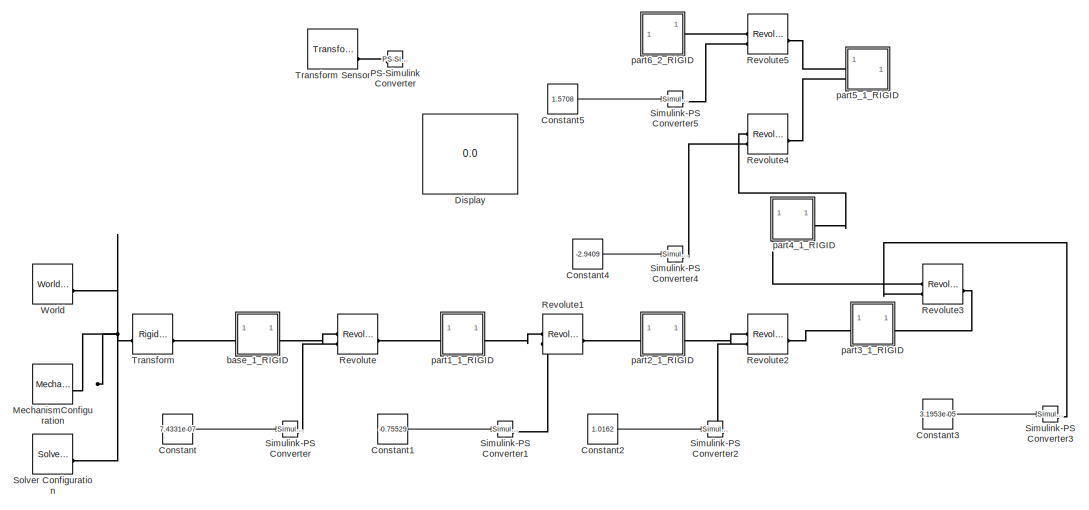
[diagram: root canvas - part 1/2, left side, full height]
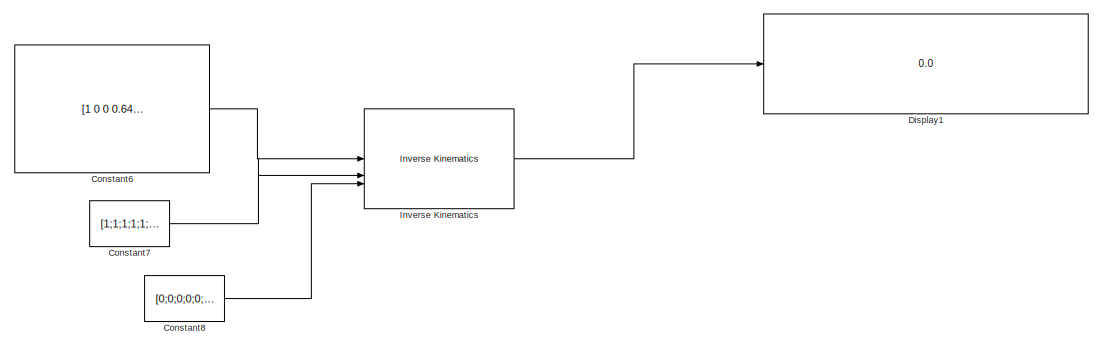
[diagram: root canvas - part 2/2, bottom right region]
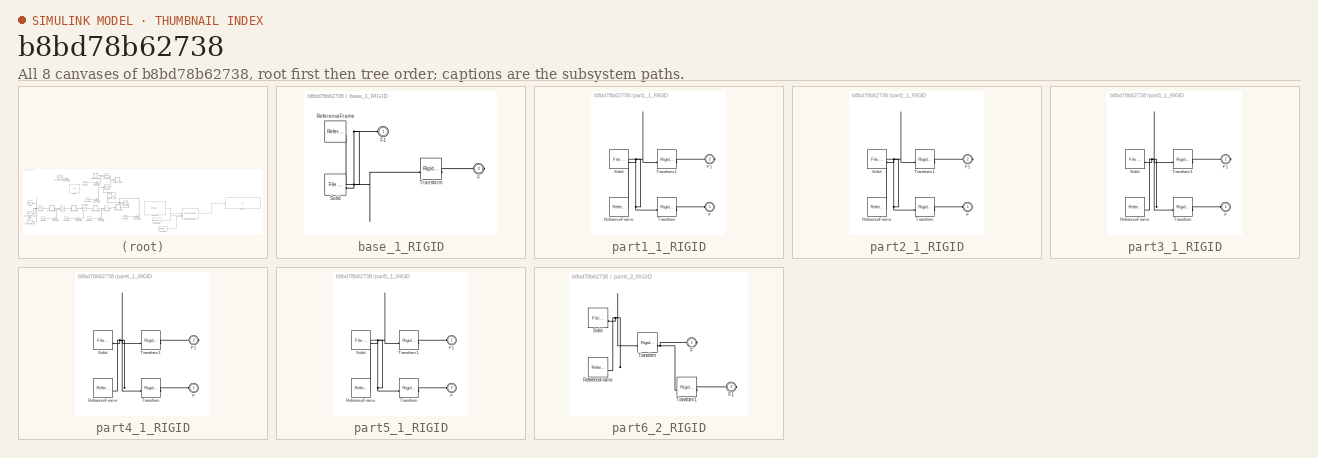
[diagram: thumbnail index - all 8 canvases of the model, root first then tree order]
MODEL slx_b8bd78b62738
KIND model
CONFIG AbsTol = auto
CONFIG EnableMultiTasking = off
CONFIG FixedStep = auto
CONFIG MaxStep = auto
CONFIG MinStep = auto
CONFIG RelTol = 1e-3
CONFIG SampleTimeConstraint = Unconstrained
CONFIG SolverName = VariableStepAuto
CONFIG StartFcn = 1
CONFIG StartTime = 0.0
CONFIG StopTime = inf
WORKSPACE source: external: MATLAB File  (data not in archive)
BLOCK [Constant] Constant
  Value = 7.4331e-07
BLOCK [Constant] Constant1
  Value = -0.75529
BLOCK [Constant] Constant2
  Value = 1.0162
BLOCK [Constant] Constant3
  Value = 3.1953e-05
BLOCK [Constant] Constant4
  NameLocation = top
  Value = -2.9409
BLOCK [Constant] Constant5
  NameLocation = top
  Value = 1.5708
BLOCK [Constant] Constant6
  Value = [1 0 0 0.6425; 0 1 0 0; 0 0 1 0.603; 0 0 0 1]
BLOCK [Constant] Constant7
  Value = [1;1;1;1;1;1]
BLOCK [Constant] Constant8
  Value = [0;0;0;0;0;0]
BLOCK [Display] Display
  Commented = on
  Decimation = 1
BLOCK [Display] Display1
  Decimation = 1
BLOCK [Reference] Inverse Kinematics  REF=robotmaniplib/Inverse Kinematics
  SourceBlock = robotmaniplib/Inverse Kinematics
  SourceType = Inverse Kinematics
BLOCK [Reference] MechanismConfiguration  REF=sm_lib/Utilities/Mechanism
Configuration
  SourceBlock = sm_lib/Utilities/Mechanism\nConfiguration
  SourceType = Mechanism\nConfiguration
BLOCK [Reference] PS-Simulink Converter  REF=nesl_utility/PS-Simulink
Converter
  Commented = on
  SourceBlock = nesl_utility/PS-Simulink\nConverter
  SourceType = PS-Simulink\nConverter
BLOCK [Reference] Revolute  REF=sm_lib/Joints/Revolute Joint
  SourceBlock = sm_lib/Joints/Revolute Joint
  SourceType = Revolute Joint
BLOCK [Reference] Revolute1  REF=sm_lib/Joints/Revolute Joint
  SourceBlock = sm_lib/Joints/Revolute Joint
  SourceType = Revolute Joint
BLOCK [Reference] Revolute2  REF=sm_lib/Joints/Revolute Joint
  SourceBlock = sm_lib/Joints/Revolute Joint
  SourceType = Revolute Joint
BLOCK [Reference] Revolute3  REF=sm_lib/Joints/Revolute Joint
  SourceBlock = sm_lib/Joints/Revolute Joint
  SourceType = Revolute Joint
BLOCK [Reference] Revolute4  REF=sm_lib/Joints/Revolute Joint
  SourceBlock = sm_lib/Joints/Revolute Joint
  SourceType = Revolute Joint
BLOCK [Reference] Revolute5  REF=sm_lib/Joints/Revolute Joint
  SourceBlock = sm_lib/Joints/Revolute Joint
  SourceType = Revolute Joint
BLOCK [Reference] Simulink-PS Converter  REF=nesl_utility/Simulink-PS
Converter
  SourceBlock = nesl_utility/Simulink-PS\nConverter
  SourceType = Simulink-PS\nConverter
BLOCK [Reference] Simulink-PS Converter1  REF=nesl_utility/Simulink-PS
Converter
  SourceBlock = nesl_utility/Simulink-PS\nConverter
  SourceType = Simulink-PS\nConverter
BLOCK [Reference] Simulink-PS Converter2  REF=nesl_utility/Simulink-PS
Converter
  SourceBlock = nesl_utility/Simulink-PS\nConverter
  SourceType = Simulink-PS\nConverter
BLOCK [Reference] Simulink-PS Converter3  REF=nesl_utility/Simulink-PS
Converter
  SourceBlock = nesl_utility/Simulink-PS\nConverter
  SourceType = Simulink-PS\nConverter
BLOCK [Reference] Simulink-PS Converter4  REF=nesl_utility/Simulink-PS
Converter
  SourceBlock = nesl_utility/Simulink-PS\nConverter
  SourceType = Simulink-PS\nConverter
BLOCK [Reference] Simulink-PS Converter5  REF=nesl_utility/Simulink-PS
Converter
  SourceBlock = nesl_utility/Simulink-PS\nConverter
  SourceType = Simulink-PS\nConverter
BLOCK [Reference] Solver Configuration  REF=nesl_utility/Solver
Configuration
  SourceBlock = nesl_utility/Solver\nConfiguration
  SourceType = Solver\nConfiguration
BLOCK [Reference] Transform  REF=sm_lib/Frames and
Transforms/Rigid
Transform
  SourceBlock = sm_lib/Frames and\nTransforms/Rigid\nTransform
  SourceType = Rigid\nTransform
BLOCK [Reference] Transform Sensor  REF=sm_lib/Frames and
Transforms/Transform
Sensor
  Commented = on
  SourceBlock = sm_lib/Frames and\nTransforms/Transform\nSensor
  SourceType = Transform\nSensor
BLOCK [Reference] World  REF=sm_lib/Frames and
Transforms/World Frame
  SourceBlock = sm_lib/Frames and\nTransforms/World Frame
  SourceType = World Frame
BLOCK [SubSystem] base_1_RIGID
BLOCK [PMIOPort] base_1_RIGID/F
  Port = 2
  Side = Right
BLOCK [PMIOPort] base_1_RIGID/F1
  Side = Left
BLOCK [Reference] base_1_RIGID/ReferenceFrame  REF=sm_lib/Frames and
Transforms/Reference
Frame
  SourceBlock = sm_lib/Frames and\nTransforms/Reference\nFrame
  SourceType = Reference\nFrame
BLOCK [Reference] base_1_RIGID/Solid  REF=sm_lib/Body Elements/File Solid
  SourceBlock = sm_lib/Body Elements/File Solid
  SourceType = File Solid
BLOCK [Reference] base_1_RIGID/Transform  REF=sm_lib/Frames and
Transforms/Rigid
Transform
  SourceBlock = sm_lib/Frames and\nTransforms/Rigid\nTransform
  SourceType = Rigid\nTransform
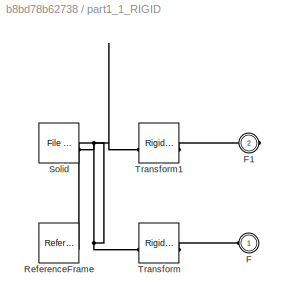
BLOCK [SubSystem] part1_1_RIGID
BLOCK [PMIOPort] part1_1_RIGID/F
  Side = Left
BLOCK [PMIOPort] part1_1_RIGID/F1
  Port = 2
  Side = Right
BLOCK [Reference] part1_1_RIGID/ReferenceFrame  REF=sm_lib/Frames and
Transforms/Reference
Frame
  SourceBlock = sm_lib/Frames and\nTransforms/Reference\nFrame
  SourceType = Reference\nFrame
BLOCK [Reference] part1_1_RIGID/Solid  REF=sm_lib/Body Elements/File Solid
  SourceBlock = sm_lib/Body Elements/File Solid
  SourceType = File Solid
BLOCK [Reference] part1_1_RIGID/Transform  REF=sm_lib/Frames and
Transforms/Rigid
Transform
  SourceBlock = sm_lib/Frames and\nTransforms/Rigid\nTransform
  SourceType = Rigid\nTransform
BLOCK [Reference] part1_1_RIGID/Transform1  REF=sm_lib/Frames and
Transforms/Rigid
Transform
  SourceBlock = sm_lib/Frames and\nTransforms/Rigid\nTransform
  SourceType = Rigid\nTransform
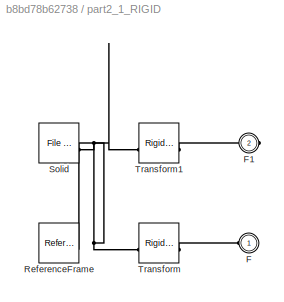
BLOCK [SubSystem] part2_1_RIGID
BLOCK [PMIOPort] part2_1_RIGID/F
  Side = Left
BLOCK [PMIOPort] part2_1_RIGID/F1
  Port = 2
  Side = Right
BLOCK [Reference] part2_1_RIGID/ReferenceFrame  REF=sm_lib/Frames and
Transforms/Reference
Frame
  SourceBlock = sm_lib/Frames and\nTransforms/Reference\nFrame
  SourceType = Reference\nFrame
BLOCK [Reference] part2_1_RIGID/Solid  REF=sm_lib/Body Elements/File Solid
  SourceBlock = sm_lib/Body Elements/File Solid
  SourceType = File Solid
BLOCK [Reference] part2_1_RIGID/Transform  REF=sm_lib/Frames and
Transforms/Rigid
Transform
  SourceBlock = sm_lib/Frames and\nTransforms/Rigid\nTransform
  SourceType = Rigid\nTransform
BLOCK [Reference] part2_1_RIGID/Transform1  REF=sm_lib/Frames and
Transforms/Rigid
Transform
  SourceBlock = sm_lib/Frames and\nTransforms/Rigid\nTransform
  SourceType = Rigid\nTransform
BLOCK [SubSystem] part3_1_RIGID
BLOCK [PMIOPort] part3_1_RIGID/F
  Side = Left
BLOCK [PMIOPort] part3_1_RIGID/F1
  Port = 2
  Side = Right
BLOCK [Reference] part3_1_RIGID/ReferenceFrame  REF=sm_lib/Frames and
Transforms/Reference
Frame
  SourceBlock = sm_lib/Frames and\nTransforms/Reference\nFrame
  SourceType = Reference\nFrame
BLOCK [Reference] part3_1_RIGID/Solid  REF=sm_lib/Body Elements/File Solid
  SourceBlock = sm_lib/Body Elements/File Solid
  SourceType = File Solid
BLOCK [Reference] part3_1_RIGID/Transform  REF=sm_lib/Frames and
Transforms/Rigid
Transform
  SourceBlock = sm_lib/Frames and\nTransforms/Rigid\nTransform
  SourceType = Rigid\nTransform
BLOCK [Reference] part3_1_RIGID/Transform1  REF=sm_lib/Frames and
Transforms/Rigid
Transform
  SourceBlock = sm_lib/Frames and\nTransforms/Rigid\nTransform
  SourceType = Rigid\nTransform
BLOCK [SubSystem] part4_1_RIGID
BLOCK [PMIOPort] part4_1_RIGID/F
  Side = Left
BLOCK [PMIOPort] part4_1_RIGID/F1
  Port = 2
  Side = Right
BLOCK [Reference] part4_1_RIGID/ReferenceFrame  REF=sm_lib/Frames and
Transforms/Reference
Frame
  SourceBlock = sm_lib/Frames and\nTransforms/Reference\nFrame
  SourceType = Reference\nFrame
BLOCK [Reference] part4_1_RIGID/Solid  REF=sm_lib/Body Elements/File Solid
  SourceBlock = sm_lib/Body Elements/File Solid
  SourceType = File Solid
BLOCK [Reference] part4_1_RIGID/Transform  REF=sm_lib/Frames and
Transforms/Rigid
Transform
  SourceBlock = sm_lib/Frames and\nTransforms/Rigid\nTransform
  SourceType = Rigid\nTransform
BLOCK [Reference] part4_1_RIGID/Transform1  REF=sm_lib/Frames and
Transforms/Rigid
Transform
  SourceBlock = sm_lib/Frames and\nTransforms/Rigid\nTransform
  SourceType = Rigid\nTransform
BLOCK [SubSystem] part5_1_RIGID
BLOCK [PMIOPort] part5_1_RIGID/F
  Port = 2
  Side = Left
BLOCK [PMIOPort] part5_1_RIGID/F1
  Side = Left
BLOCK [Reference] part5_1_RIGID/ReferenceFrame  REF=sm_lib/Frames and
Transforms/Reference
Frame
  SourceBlock = sm_lib/Frames and\nTransforms/Reference\nFrame
  SourceType = Reference\nFrame
BLOCK [Reference] part5_1_RIGID/Solid  REF=sm_lib/Body Elements/File Solid
  SourceBlock = sm_lib/Body Elements/File Solid
  SourceType = File Solid
BLOCK [Reference] part5_1_RIGID/Transform  REF=sm_lib/Frames and
Transforms/Rigid
Transform
  SourceBlock = sm_lib/Frames and\nTransforms/Rigid\nTransform
  SourceType = Rigid\nTransform
BLOCK [Reference] part5_1_RIGID/Transform1  REF=sm_lib/Frames and
Transforms/Rigid
Transform
  SourceBlock = sm_lib/Frames and\nTransforms/Rigid\nTransform
  SourceType = Rigid\nTransform
BLOCK [SubSystem] part6_2_RIGID
BLOCK [PMIOPort] part6_2_RIGID/F
  Side = Right
BLOCK [PMIOPort] part6_2_RIGID/F1
  Port = 2
  Side = Right
BLOCK [Reference] part6_2_RIGID/ReferenceFrame  REF=sm_lib/Frames and
Transforms/Reference
Frame
  SourceBlock = sm_lib/Frames and\nTransforms/Reference\nFrame
  SourceType = Reference\nFrame
BLOCK [Reference] part6_2_RIGID/Solid  REF=sm_lib/Body Elements/File Solid
  SourceBlock = sm_lib/Body Elements/File Solid
  SourceType = File Solid
BLOCK [Reference] part6_2_RIGID/Transform  REF=sm_lib/Frames and
Transforms/Rigid
Transform
  SourceBlock = sm_lib/Frames and\nTransforms/Rigid\nTransform
  SourceType = Rigid\nTransform
BLOCK [Reference] part6_2_RIGID/Transform1  REF=sm_lib/Frames and
Transforms/Rigid
Transform
  SourceBlock = sm_lib/Frames and\nTransforms/Rigid\nTransform
  SourceType = Rigid\nTransform
LINE Constant1:1 -> Simulink-PS Converter1:1
LINE Constant2:1 -> Simulink-PS Converter2:1
LINE Constant3:1 -> Simulink-PS Converter3:1
LINE Constant4:1 -> Simulink-PS Converter4:1
LINE Constant5:1 -> Simulink-PS Converter5:1
LINE Constant6:1 -> Inverse Kinematics:1
LINE Constant7:1 -> Inverse Kinematics:2
LINE Constant8:1 -> Inverse Kinematics:3
LINE Constant:1 -> Simulink-PS Converter:1
LINE Inverse Kinematics:1 -> Display1:1
PNET net1: MechanismConfiguration:RConn1 -- Solver Configuration:RConn1 -- Transform:LConn1 -- World:RConn1
PLINE PS-Simulink Converter:LConn1 -- Transform Sensor:RConn2
PLINE Revolute1:LConn1 -- part1_1_RIGID:RConn1
PLINE Revolute1:LConn2 -- Simulink-PS Converter1:RConn1
PLINE Revolute1:RConn1 -- part2_1_RIGID:LConn1
PLINE Revolute2:LConn1 -- part2_1_RIGID:RConn1
PLINE Revolute2:LConn2 -- Simulink-PS Converter2:RConn1
PLINE Revolute2:RConn1 -- part3_1_RIGID:LConn1
PLINE Revolute3:LConn1 -- part4_1_RIGID:LConn1
PLINE Revolute3:LConn2 -- Simulink-PS Converter3:RConn1
PLINE Revolute3:RConn1 -- part3_1_RIGID:RConn1
PLINE Revolute4:LConn1 -- part4_1_RIGID:RConn1
PLINE Revolute4:LConn2 -- Simulink-PS Converter4:RConn1
PLINE Revolute4:RConn1 -- part5_1_RIGID:LConn2
PLINE Revolute5:LConn1 -- part6_2_RIGID:RConn1
PLINE Revolute5:LConn2 -- Simulink-PS Converter5:RConn1
PLINE Revolute5:RConn1 -- part5_1_RIGID:LConn1
PLINE Revolute:LConn1 -- base_1_RIGID:RConn1
PLINE Revolute:LConn2 -- Simulink-PS Converter:RConn1
PLINE Revolute:RConn1 -- part1_1_RIGID:LConn1
PLINE Transform:RConn1 -- base_1_RIGID:LConn1
PNET net2: base_1_RIGID/F1:RConn1 -- base_1_RIGID/ReferenceFrame:RConn1 -- base_1_RIGID/Solid:RConn1 -- base_1_RIGID/Transform:LConn1
PLINE base_1_RIGID/F:RConn1 -- base_1_RIGID/Transform:RConn1
PLINE part1_1_RIGID/F1:RConn1 -- part1_1_RIGID/Transform1:RConn1
PLINE part1_1_RIGID/F:RConn1 -- part1_1_RIGID/Transform:RConn1
PNET net3: part1_1_RIGID/ReferenceFrame:RConn1 -- part1_1_RIGID/Solid:RConn1 -- part1_1_RIGID/Transform1:LConn1 -- part1_1_RIGID/Transform:LConn1
PLINE part2_1_RIGID/F1:RConn1 -- part2_1_RIGID/Transform1:RConn1
PLINE part2_1_RIGID/F:RConn1 -- part2_1_RIGID/Transform:RConn1
PNET net4: part2_1_RIGID/ReferenceFrame:RConn1 -- part2_1_RIGID/Solid:RConn1 -- part2_1_RIGID/Transform1:LConn1 -- part2_1_RIGID/Transform:LConn1
PLINE part3_1_RIGID/F1:RConn1 -- part3_1_RIGID/Transform1:RConn1
PLINE part3_1_RIGID/F:RConn1 -- part3_1_RIGID/Transform:RConn1
PNET net5: part3_1_RIGID/ReferenceFrame:RConn1 -- part3_1_RIGID/Solid:RConn1 -- part3_1_RIGID/Transform1:LConn1 -- part3_1_RIGID/Transform:LConn1
PLINE part4_1_RIGID/F1:RConn1 -- part4_1_RIGID/Transform1:RConn1
PLINE part4_1_RIGID/F:RConn1 -- part4_1_RIGID/Transform:RConn1
PNET net6: part4_1_RIGID/ReferenceFrame:RConn1 -- part4_1_RIGID/Solid:RConn1 -- part4_1_RIGID/Transform1:LConn1 -- part4_1_RIGID/Transform:LConn1
PLINE part5_1_RIGID/F1:RConn1 -- part5_1_RIGID/Transform1:RConn1
PLINE part5_1_RIGID/F:RConn1 -- part5_1_RIGID/Transform:RConn1
PNET net7: part5_1_RIGID/ReferenceFrame:RConn1 -- part5_1_RIGID/Solid:RConn1 -- part5_1_RIGID/Transform1:LConn1 -- part5_1_RIGID/Transform:LConn1
PLINE part6_2_RIGID/F1:RConn1 -- part6_2_RIGID/Transform1:RConn1
PNET net8: part6_2_RIGID/F:RConn1 -- part6_2_RIGID/Transform1:LConn1 -- part6_2_RIGID/Transform:RConn1
PNET net9: part6_2_RIGID/ReferenceFrame:RConn1 -- part6_2_RIGID/Solid:RConn1 -- part6_2_RIGID/Transform:LConn1
note: PNET lines group multi-terminal physical nets as a canonical sorted terminal list (undirected conserving connections); 2-terminal nets keep the pairwise PLINE form
